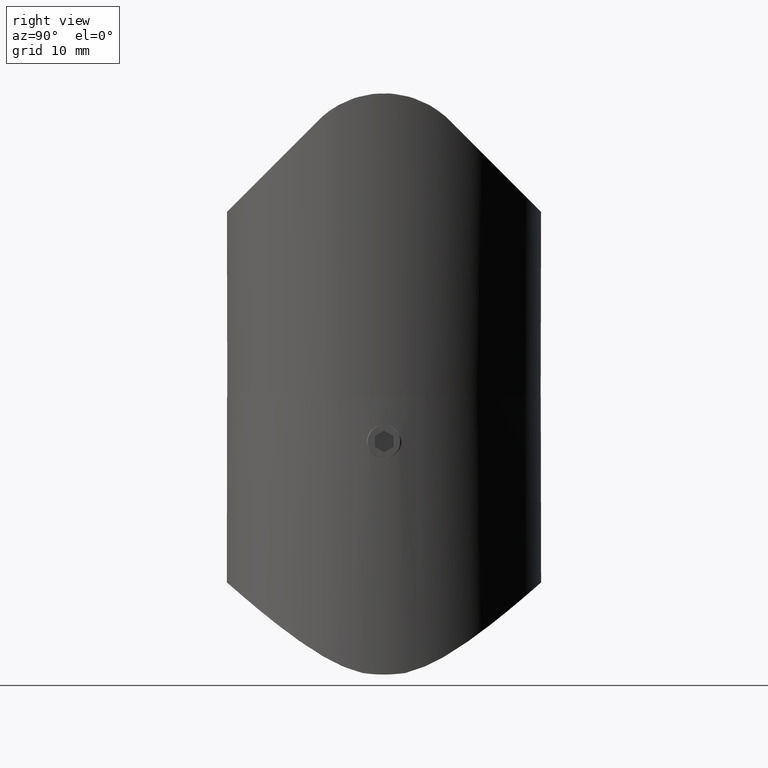
[diagram: clean part render]
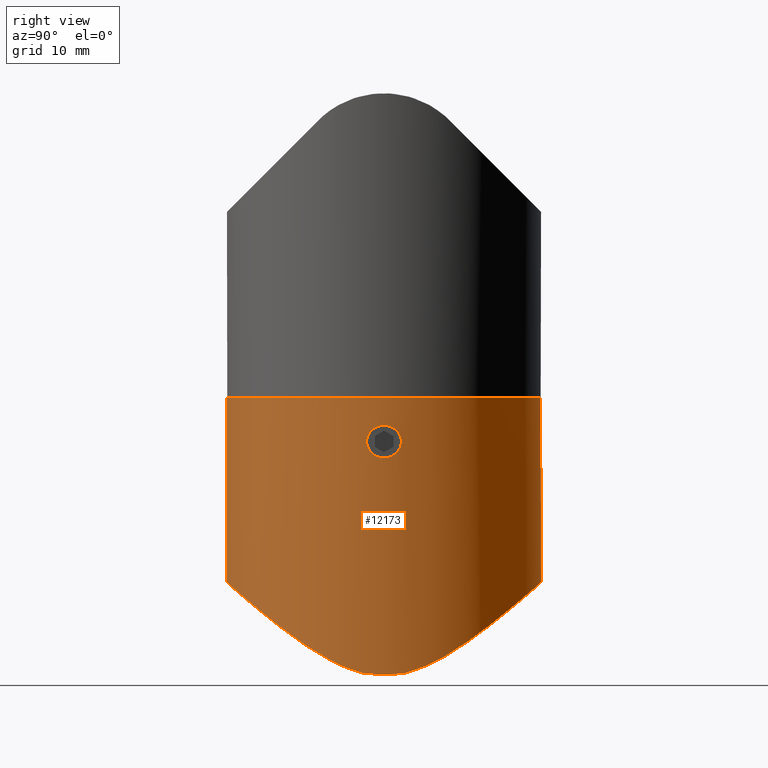
[diagram: same view with one face highlighted and labeled with its STEP entity id]
A machine part, right view. The second image highlights one B-rep face of the part: STEP entity #12173.
In plain terms, the highlighted cylindrical surface (bore or boss wall) has radius 21.2 mm, axis along (0, 0, 1).
Its self-contained STEP definition (entity closure, byte-faithful):
#42 = CARTESIAN_POINT ( 'NONE',  ( -19.23597846385222354, 8.932488683471675017, 34.54295748063633908 ) ) ;
#44 = CARTESIAN_POINT ( 'NONE',  ( 21.17990763815526378, -0.9315037983321998727, 4.112874297098431775 ) ) ;
#194 = CARTESIAN_POINT ( 'NONE',  ( 21.09707939755139350, 2.086613002382393667, 5.726540661255983267 ) ) ;
#206 = EDGE_CURVE ( 'NONE', #9752, #12154, #13322, .T. ) ;
#244 = CARTESIAN_POINT ( 'NONE',  ( 21.16144567167990687, 1.292609180729940244, 4.322456309281889730 ) ) ;
#297 = CARTESIAN_POINT ( 'NONE',  ( 21.09572109661938200, 2.100131289065026774, 5.863268701457142740 ) ) ;
#343 = CARTESIAN_POINT ( 'NONE',  ( 21.17990721333730519, -0.9315160159744285684, 7.887121136182978276 ) ) ;
#349 = CARTESIAN_POINT ( 'NONE',  ( -21.13403217786177279, -1.918809550294324984, 37.36393950467139291 ) ) ;
#403 = CARTESIAN_POINT ( 'NONE',  ( 7.647602592755208484, 19.77533550941512175, 26.24056046325635450 ) ) ;
#423 = CARTESIAN_POINT ( 'NONE',  ( 18.13045765174069501, -11.05191198984288725, 33.17200233731336567 ) ) ;
#464 = CARTESIAN_POINT ( 'NONE',  ( 21.00712700212032402, 2.853176320662127896, 37.23685116701751241 ) ) ;
#470 = CARTESIAN_POINT ( 'NONE',  ( -5.396076094516366162, -20.51278480333633780, 25.60116007777574865 ) ) ;
#573 = CARTESIAN_POINT ( 'NONE',  ( -9.162175566396577153, -19.16368644537788413, 26.76772449057559200 ) ) ;
#616 = CARTESIAN_POINT ( 'NONE',  ( -19.73511412023929168, -7.843637761432188604, 35.21260965036015023 ) ) ;
#1098 = CARTESIAN_POINT ( 'NONE',  ( -18.12391036325159277, 11.06335513298896522, 33.16428687448349422 ) ) ;
#1099 = CARTESIAN_POINT ( 'NONE',  ( 21.16161369789840663, -1.280298884812170801, 4.329772328853101371 ) ) ;
#1141 = VERTEX_POINT ( 'NONE', #5688 ) ;
#1304 = CARTESIAN_POINT ( 'NONE',  ( 21.19338738802113653, -0.5463122828986949342, 8.032335209250529573 ) ) ;
#1352 = CARTESIAN_POINT ( 'NONE',  ( 21.18956307100512149, -0.6772064039055412099, 7.992571142307027365 ) ) ;
#1360 = EDGE_LOOP ( 'NONE', ( #12183 ) ) ;
#1416 = CARTESIAN_POINT ( 'NONE',  ( 21.00712700212032757, -2.853176320662111465, 37.23685116701751951 ) ) ;
#1441 = CARTESIAN_POINT ( 'NONE',  ( 21.14105087698178309, 1.582837063395892807, 4.613142161995630097 ) ) ;
#1547 = CARTESIAN_POINT ( 'NONE',  ( 20.96165513481468423, 3.187972766502427113, 37.15666805968751163 ) ) ;
#1563 = CARTESIAN_POINT ( 'NONE',  ( 21.19963030019371431, 0.9707453046317577883, 37.42962977629206023 ) ) ;
#1569 = CARTESIAN_POINT ( 'NONE',  ( 16.39847894521176030, -13.44926250891399810, 31.41394777627913015 ) ) ;
#1616 = CARTESIAN_POINT ( 'NONE',  ( 6.773617160303725626, -20.13185422919217160, 25.93339866276988914 ) ) ;
#1668 = CARTESIAN_POINT ( 'NONE',  ( 0.7347191679847786538, -21.19844763048626746, 25.00136274186395013 ) ) ;
#1693 = CARTESIAN_POINT ( 'NONE',  ( 20.78756491447705912, 4.174717419718016131, 36.85715627027112617 ) ) ;
#1764 = CARTESIAN_POINT ( 'NONE',  ( -20.91628547743193423, -3.522016669705998027, 37.07666518487717155 ) ) ;
#1808 = CARTESIAN_POINT ( 'NONE',  ( -13.87356393974180868, -16.04150359184534835, 29.37493161141261666 ) ) ;
#2003 = EDGE_CURVE ( 'NONE', #1141, #1141, #5945, .T. ) ;
#2176 = CARTESIAN_POINT ( 'NONE',  ( -3.439803116376629166, 20.92192858588276394, 25.24374555963997580 ) ) ;
#2178 = EDGE_CURVE ( 'NONE', #11021, #11021, #3659, .T. ) ;
#2231 = CARTESIAN_POINT ( 'NONE',  ( 21.13432663958283442, -1.678659205009713107, 4.708850327599564345 ) ) ;
#2345 = CARTESIAN_POINT ( 'NONE',  ( -10.86460074146358323, 18.21520422549882667, 27.57356249888234245 ) ) ;
#2501 = CARTESIAN_POINT ( 'NONE',  ( 21.10616220373411167, -1.993165109395325985, 6.675450194649335423 ) ) ;
#2529 = CARTESIAN_POINT ( 'NONE',  ( 19.71573332048203042, -7.816723346999874700, 35.19728964752894740 ) ) ;
#2547 = CARTESIAN_POINT ( 'NONE',  ( 21.11598095513040008, 1.886308813911637960, 6.933149290118354457 ) ) ;
#2573 = CARTESIAN_POINT ( 'NONE',  ( 20.50098138586953667, -5.437601084095699200, 36.38237944277855718 ) ) ;
#2642 = CARTESIAN_POINT ( 'NONE',  ( 21.20000995909719421, 0.2733994728624853376, 8.100100539464074600 ) ) ;
#2667 = CARTESIAN_POINT ( 'NONE',  ( 21.13403217786176924, 1.918809550294323207, 37.36393950467139291 ) ) ;
#2700 = CARTESIAN_POINT ( 'NONE',  ( 18.41838187507392632, 10.51468112685976308, 33.52365423217118945 ) ) ;
#2712 = CARTESIAN_POINT ( 'NONE',  ( 21.11900221118096965, -1.912205851641371579, 37.34888705888861438 ) ) ;
#2740 = CARTESIAN_POINT ( 'NONE',  ( 20.71935944404669883, 4.500574249301715568, 36.74229322337289716 ) ) ;
#2761 = CARTESIAN_POINT ( 'NONE',  ( -21.00712700212032047, -2.853176320662137222, 37.23685116701751241 ) ) ;
#2792 = CARTESIAN_POINT ( 'NONE',  ( 16.02780701566494770, 13.92706447072073672, 31.05704621812411403 ) ) ;
#2814 = CARTESIAN_POINT ( 'NONE',  ( 10.34671308708050397, -18.51491773498372950, 27.31973694149502307 ) ) ;
#2861 = CARTESIAN_POINT ( 'NONE',  ( -10.30406304709418208, -18.57071127658194598, 27.27495351244458632 ) ) ;
#2949 = CARTESIAN_POINT ( 'NONE',  ( -0.6422222868339445556, -21.20145147702313793, 24.99872582626054651 ) ) ;
#3280 = CARTESIAN_POINT ( 'NONE',  ( -21.00712700212032402, 2.853176320662146548, 37.23685116701751241 ) ) ;
#3545 = CARTESIAN_POINT ( 'NONE',  ( 13.88689877286998886, 16.02995388467169491, 29.38430273930195469 ) ) ;
#3649 = CARTESIAN_POINT ( 'NONE',  ( 21.12172412929903942, 1.821710862658697527, 7.053658385993622382 ) ) ;
#3659 = CIRCLE ( 'NONE', #7383, 21.19999999999999929 ) ;
#3749 = CARTESIAN_POINT ( 'NONE',  ( 21.09574910491176425, -2.099849929224488765, 5.724761762734266846 ) ) ;
#3789 = DIRECTION ( 'NONE',  ( -1.000000000000000000, 0.000000000000000000, 0.000000000000000000 ) ) ;
#3792 = CARTESIAN_POINT ( 'NONE',  ( 21.19437822398569082, 0.5498438256650879374, 8.045118345572543461 ) ) ;
#3798 = CARTESIAN_POINT ( 'NONE',  ( -21.11900221118096965, 1.912205851641397558, 37.34888705888862148 ) ) ;
#3821 = CARTESIAN_POINT ( 'NONE',  ( 20.78775257781547126, -4.173603469984121794, 36.85748119412961898 ) ) ;
#3852 = CARTESIAN_POINT ( 'NONE',  ( 11.92158381141523016, 17.54180937855982592, 28.13896504426887546 ) ) ;
#3870 = CARTESIAN_POINT ( 'NONE',  ( 21.00712700212032757, -2.853176320662111465, 37.23685116701751951 ) ) ;
#3876 = CARTESIAN_POINT ( 'NONE',  ( 19.23420582344855845, -8.936253722288524770, 34.54063338520331428 ) ) ;
#3899 = CARTESIAN_POINT ( 'NONE',  ( -21.07073050063740283, 2.384881823244826116, 37.30054646429981347 ) ) ;
#3953 = CARTESIAN_POINT ( 'NONE',  ( 17.12039434767141088, 12.51740899731145262, 32.10974278505898383 ) ) ;
#3977 = CARTESIAN_POINT ( 'NONE',  ( 10.89474468146732811, -18.19709753500846361, 27.58884435939416591 ) ) ;
#4019 = CARTESIAN_POINT ( 'NONE',  ( 3.811110620333657106, -20.85745351731364750, 25.30016142219273689 ) ) ;
#4062 = CARTESIAN_POINT ( 'NONE',  ( -17.11432993022324212, -12.52577624766683684, 32.10360622135683428 ) ) ;
#4088 = VERTEX_POINT ( 'NONE', #12140 ) ;
#4113 = CARTESIAN_POINT ( 'NONE',  ( -1.332994956151982713, -21.16950665509390106, 25.02678527103411099 ) ) ;
#4456 = CARTESIAN_POINT ( 'NONE',  ( -19.71784070396991595, 7.811464620351530996, 35.20025747201218991 ) ) ;
#4502 = EDGE_LOOP ( 'NONE', ( #4820, #8629, #13469, #13862 ) ) ;
#4509 = CARTESIAN_POINT ( 'NONE',  ( -18.97183492088005252, 9.479871736913381142, 34.20037985494270316 ) ) ;
#4510 = CARTESIAN_POINT ( 'NONE',  ( 21.20000000000000284, -0.1388272120650175800, 3.899999999999993694 ) ) ;
#4558 = CARTESIAN_POINT ( 'NONE',  ( 1.362535519911034720, 21.16752491143684978, 25.02852471459105743 ) ) ;
#4576 = B_SPLINE_CURVE_WITH_KNOTS ( 'NONE', 3,
 ( #464, #2667, #1563, #10719, #7320, #2712, #10764, #3870 ),
 .UNSPECIFIED., .F., .F.,
 ( 4, 2, 2, 4 ),
 ( 0.007900712102515517615, 0.01076325689263845156, 0.01219452928769991853, 0.01362580168276138551 ),
 .UNSPECIFIED. ) ;
#4668 = CARTESIAN_POINT ( 'NONE',  ( 21.15471770136679908, -1.388284475265848084, 4.418416215778702139 ) ) ;
#4819 = CARTESIAN_POINT ( 'NONE',  ( 21.13423477636316505, -1.670308768415172063, 7.280147132885220529 ) ) ;
#4820 = ORIENTED_EDGE ( 'NONE', *, *, #12804, .T. ) ;
#4872 = CARTESIAN_POINT ( 'NONE',  ( 21.17407507464254834, -1.054277556611229683, 7.821318373140353053 ) ) ;
#4974 = CARTESIAN_POINT ( 'NONE',  ( 21.16162508171706591, 1.289713351101869909, 7.679761609492387286 ) ) ;
#4975 = CYLINDRICAL_SURFACE ( 'NONE', #6657, 21.19999999999999929 ) ;
#4981 = CARTESIAN_POINT ( 'NONE',  ( 21.00712700212032402, 2.853176320662127896, 37.23685116701751241 ) ) ;
#5001 = CARTESIAN_POINT ( 'NONE',  ( 20.72086091090560700, -4.493368329470233569, 36.74482401454351788 ) ) ;
#5032 = CARTESIAN_POINT ( 'NONE',  ( 5.422092578124641626, 20.50587517643577584, 25.60717943683935971 ) ) ;
#5055 = CARTESIAN_POINT ( 'NONE',  ( 15.19693727668651917, -14.79376332302379637, 30.37340210289483977 ) ) ;
#5128 = CARTESIAN_POINT ( 'NONE',  ( -21.19963030019371786, -0.9707453046317535694, 37.42962977629206023 ) ) ;
#5129 = CARTESIAN_POINT ( 'NONE',  ( 6.386273738954107770, 20.21801199179768460, 25.85733474396101172 ) ) ;
#5154 = CARTESIAN_POINT ( 'NONE',  ( -13.40629872976561998, -16.43454344511161835, 29.05445220192506639 ) ) ;
#5197 = CARTESIAN_POINT ( 'NONE',  ( -15.21121093450936179, -14.81625854981715307, 30.35989657932969621 ) ) ;
#5248 = CARTESIAN_POINT ( 'NONE',  ( 2.788077751111214031, -21.01869043531653602, 25.15901743832320392 ) ) ;
#5368 = CARTESIAN_POINT ( 'NONE',  ( -21.00712700212032402, 2.853176320662146548, 37.23685116701751241 ) ) ;
#5429 = B_SPLINE_CURVE_WITH_KNOTS ( 'NONE', 3,
 ( #8587, #349, #5128, #9549, #7353, #3798, #3899, #7258 ),
 .UNSPECIFIED., .F., .F.,
 ( 4, 2, 2, 4 ),
 ( 0.007900712102515500268, 0.01076325689263845503, 0.01219452928769993415, 0.01362580168276141153 ),
 .UNSPECIFIED. ) ;
#5615 = CARTESIAN_POINT ( 'NONE',  ( -6.738059069938740819, 20.14389076958427083, 25.92295129678037569 ) ) ;
#5668 = CARTESIAN_POINT ( 'NONE',  ( -3.780921063279433447, 20.86292830591651182, 25.29537290220894974 ) ) ;
#5688 = CARTESIAN_POINT ( 'NONE',  ( 21.19999999999999929, 0.000000000000000000, 3.899999999999994582 ) ) ;
#5721 = CARTESIAN_POINT ( 'NONE',  ( -0.7009264218913946465, 21.19955676658834420, 25.00038909100973683 ) ) ;
#5829 = CARTESIAN_POINT ( 'NONE',  ( -2.756304289599201152, 21.02289532617592727, 25.15533322778153291 ) ) ;
#5938 = CARTESIAN_POINT ( 'NONE',  ( 21.16153344260949964, -1.281584484258582624, 7.669204299185823359 ) ) ;
#5945 = B_SPLINE_CURVE_WITH_KNOTS ( 'NONE', 3,
 ( #6825, #4510, #9183, #12715, #13711, #44, #7979, #1099, #4668, #2231, #10294, #8340, #3749, #12907, #6082, #14104, #2501, #11704, #7150, #4819, #7252, #11858, #5938, #4872, #343, #1352, #1304, #10604, #9386, #2642, #3792, #8389, #4974, #9436, #10553, #3649, #2547, #10698, #13005, #6134, #12857, #297, #194, #14058, #7048, #5985, #14010, #13961, #1441, #244, #11752, #10505, #7203, #8294 ),
 .UNSPECIFIED., .T., .F.,
 ( 4, 2, 2, 2, 2, 2, 2, 2, 2, 2, 2, 2, 2, 2, 2, 2, 2, 2, 2, 2, 2, 2, 2, 2, 2, 2, 4 ),
 ( 0.000000000000000000, 0.0004105508344981324115, 0.0008211016689962648231, 0.001231652503494396964, 0.001642203337992529212, 0.002463305006988793493, 0.003284406675985057124, 0.003694957510483187855, 0.004105508344981318586, 0.004516059179479449751, 0.004926610013977580915, 0.005337160848475711213, 0.005747711682973844112, 0.006158262517471977011, 0.006568813351970108176, 0.007389915020966372240, 0.008211016689962635437, 0.008621567524460766602, 0.009032118358958897766, 0.009442669193457028931, 0.009853220027955160096, 0.01026377086245329126, 0.01067432169695142243, 0.01108487253144955359, 0.01149542336594768302, 0.01231652503494394535, 0.01313762670394020768 ),
 .UNSPECIFIED. ) ;
#5985 = CARTESIAN_POINT ( 'NONE',  ( 21.11583341769087241, 1.887954371105018181, 5.070168364133524008 ) ) ;
#6082 = CARTESIAN_POINT ( 'NONE',  ( 21.09709816131977789, -2.086426204013593466, 6.275112895853672157 ) ) ;
#6092 = CARTESIAN_POINT ( 'NONE',  ( 20.32309887453862984, 6.066109017756510902, 36.09937665069506352 ) ) ;
#6134 = CARTESIAN_POINT ( 'NONE',  ( 21.09712806385816819, 2.086124010063418410, 6.277169851052172511 ) ) ;
#6141 = CARTESIAN_POINT ( 'NONE',  ( 15.22310809826112710, 14.80400270599857926, 30.36957234920756221 ) ) ;
#6207 = CARTESIAN_POINT ( 'NONE',  ( 18.97323679878745395, -9.476858588178714626, 34.20223640908989182 ) ) ;
#6232 = CARTESIAN_POINT ( 'NONE',  ( 7.334752425999731429, 19.89354010316624510, 26.13842956057309408 ) ) ;
#6251 = CARTESIAN_POINT ( 'NONE',  ( -2.719297261495661200, -21.03640439753937486, 25.14350532009003913 ) ) ;
#6347 = CARTESIAN_POINT ( 'NONE',  ( -3.402102689720538642, -20.93633553200553266, 25.23120817832914398 ) ) ;
#6437 = CARTESIAN_POINT ( 'NONE',  ( -11.90780048948769654, -17.55122632899825419, 28.13110359627880896 ) ) ;
#6657 = AXIS2_PLACEMENT_3D ( 'NONE', #9537, #11801, #3789 ) ;
#6819 = CARTESIAN_POINT ( 'NONE',  ( 21.00712700212032402, 2.853176320662127896, 37.23685116701751241 ) ) ;
#6824 = CARTESIAN_POINT ( 'NONE',  ( 0.6738532056318576879, 21.20043459002589259, 24.99961849655812784 ) ) ;
#6825 = CARTESIAN_POINT ( 'NONE',  ( 21.20000000000000995, -2.710505431213761085E-16, 3.899999999999994138 ) ) ;
#6862 = CARTESIAN_POINT ( 'NONE',  ( 0.000000000000000000, 0.000000000000000000, 0.000000000000000000 ) ) ;
#7048 = CARTESIAN_POINT ( 'NONE',  ( 21.10615884063567194, 1.993201350817870754, 5.324643091742984780 ) ) ;
#7150 = CARTESIAN_POINT ( 'NONE',  ( 21.12167644414212120, -1.822250024901788334, 7.052669421245001402 ) ) ;
#7203 = CARTESIAN_POINT ( 'NONE',  ( 21.20000000000002771, 0.2776544241300338278, 3.899999999999995470 ) ) ;
#7252 = CARTESIAN_POINT ( 'NONE',  ( 21.14100263320111139, -1.583558204165291583, 7.386204616789977528 ) ) ;
#7258 = CARTESIAN_POINT ( 'NONE',  ( -21.00712700212032402, 2.853176320662146548, 37.23685116701751241 ) ) ;
#7320 = CARTESIAN_POINT ( 'NONE',  ( 21.18375471972889201, -0.9577690688688728082, 37.41373175145059804 ) ) ;
#7326 = CARTESIAN_POINT ( 'NONE',  ( 19.93680325968655254, -7.235709379913692452, 35.51649783850340469 ) ) ;
#7353 = CARTESIAN_POINT ( 'NONE',  ( -21.18375471972889201, 0.9577690688688924592, 37.41373175145059804 ) ) ;
#7354 = CARTESIAN_POINT ( 'NONE',  ( 6.704504597749570749, 20.11469982589219541, 25.94697034139354841 ) ) ;
#7377 = CARTESIAN_POINT ( 'NONE',  ( -12.42468894060447759, -17.18866395652079504, 28.43317129322997161 ) ) ;
#7383 = AXIS2_PLACEMENT_3D ( 'NONE', #6862, #10334, #12588 ) ;
#7404 = CARTESIAN_POINT ( 'NONE',  ( 19.26095484813178871, 8.937385452166589417, 34.55458941497773395 ) ) ;
#7420 = CARTESIAN_POINT ( 'NONE',  ( -18.11090023929508064, -11.03589552853494560, 33.16726000232421967 ) ) ;
#7447 = CARTESIAN_POINT ( 'NONE',  ( 4.766678230917356984, 20.66841490208581789, 25.46536838872536990 ) ) ;
#7471 = CARTESIAN_POINT ( 'NONE',  ( 2.446709694631026277, -21.06114192269938812, 25.12180968013061388 ) ) ;
#7516 = CARTESIAN_POINT ( 'NONE',  ( -20.57230812902643180, -5.131032304698399216, 36.49997264052047541 ) ) ;
#7560 = CARTESIAN_POINT ( 'NONE',  ( 3.469661371898516311, -20.91698293555415233, 25.24807388963649402 ) ) ;
#7979 = CARTESIAN_POINT ( 'NONE',  ( 21.17418639989980633, -1.052088321307287355, 4.177382137669857443 ) ) ;
#8053 = B_SPLINE_CURVE_WITH_KNOTS ( 'NONE', 3,
 ( #1416, #14086, #8319, #3821, #5001, #2573, #14181, #7326, #2529, #3876, #6207, #423, #8471, #1569, #11932, #5055, #11728, #13083, #12886, #3977, #2814, #14428, #10865, #11002, #10914, #1616, #10957, #4019, #7560, #5248, #7471, #12079, #1668, #2949, #4113, #6251, #6347, #8608, #470, #9722, #9768, #573, #2861, #6437, #7377, #5154, #1808, #5197, #13138, #4062, #13235, #7420, #14386, #12124, #616, #13278, #10818, #12171, #7516, #8653, #1764, #2761 ),
 .UNSPECIFIED., .F., .F.,
 ( 4, 2, 2, 2, 2, 2, 2, 2, 2, 2, 2, 2, 2, 2, 2, 2, 2, 2, 2, 2, 2, 2, 2, 2, 2, 2, 2, 2, 2, 2, 4 ),
 ( 0.07476078482839286499, 0.07578968248729871238, 0.07681858014620454589, 0.07887637546401624067, 0.08093417078182793545, 0.08299196609963963023, 0.08710755673526300591, 0.08916535205307470069, 0.09122314737088639547, 0.09533873800650977115, 0.09739653332432147981, 0.09842543098322732720, 0.09945432864213318847, 0.1035699192777566058, 0.1045988169366624532, 0.1056277145955683144, 0.1076855099133800231, 0.1097433052311917456, 0.1118011005490034682, 0.1138588958668151629, 0.1159166911846268855, 0.1200322818202503167, 0.1220900771380620253, 0.1241478724558737479, 0.1282634630914971652, 0.1303212584093088877, 0.1323790537271206103, 0.1364946443627440276, 0.1375235420216499027, 0.1385524396805557501, 0.1406102349983675004 ),
 .UNSPECIFIED. ) ;
#8294 = CARTESIAN_POINT ( 'NONE',  ( 21.20000000000000995, -2.710505431213761085E-16, 3.899999999999994138 ) ) ;
#8319 = CARTESIAN_POINT ( 'NONE',  ( 20.90794619724893977, -3.522415218863476749, 37.06304580789293368 ) ) ;
#8340 = CARTESIAN_POINT ( 'NONE',  ( 21.10143678659413524, -2.044610665509437819, 5.448299648458998945 ) ) ;
#8389 = CARTESIAN_POINT ( 'NONE',  ( 21.17522279075312142, 1.055431805447856419, 7.836001357316622951 ) ) ;
#8447 = CARTESIAN_POINT ( 'NONE',  ( 19.73789465108027130, 7.835791004179342600, 35.21671304316074469 ) ) ;
#8471 = CARTESIAN_POINT ( 'NONE',  ( 17.48940784883374633, -12.04041976419779303, 32.46576331103037205 ) ) ;
#8587 = CARTESIAN_POINT ( 'NONE',  ( -21.00712700212032047, -2.853176320662137222, 37.23685116701751241 ) ) ;
#8608 = CARTESIAN_POINT ( 'NONE',  ( -4.739745974947039642, -20.67460413921133622, 25.45996595585380362 ) ) ;
#8629 = ORIENTED_EDGE ( 'NONE', *, *, #13554, .T. ) ;
#8653 = CARTESIAN_POINT ( 'NONE',  ( -20.79541592569758635, -4.173738557589052434, 36.86767968655849614 ) ) ;
#9076 = CARTESIAN_POINT ( 'NONE',  ( -5.459644923684983553, 20.53062450731297872, 25.58578250206875282 ) ) ;
#9126 = CARTESIAN_POINT ( 'NONE',  ( -17.48167452434349656, 12.05102649167851503, 32.45797247212890824 ) ) ;
#9181 = CARTESIAN_POINT ( 'NONE',  ( 3.425821476951149247, 20.92421268954094771, 25.24174641364692917 ) ) ;
#9183 = CARTESIAN_POINT ( 'NONE',  ( 21.19863746736675125, -0.2753175862556580533, 3.913630802454696855 ) ) ;
#9231 = CARTESIAN_POINT ( 'NONE',  ( -15.22914346387899442, 14.79897448196191156, 30.37367959076336632 ) ) ;
#9386 = CARTESIAN_POINT ( 'NONE',  ( 21.19999499941276966, -0.1378564806932635056, 8.099949517877861993 ) ) ;
#9436 = CARTESIAN_POINT ( 'NONE',  ( 21.14123479112609161, 1.580387820527488385, 7.389645363001664968 ) ) ;
#9537 = CARTESIAN_POINT ( 'NONE',  ( 0.000000000000000000, 0.000000000000000000, 47.99999999999979394 ) ) ;
#9549 = CARTESIAN_POINT ( 'NONE',  ( -21.20018252438487849, 0.4732111163167221912, 37.43018278304006685 ) ) ;
#9595 = CARTESIAN_POINT ( 'NONE',  ( 18.11606535869906409, 11.02746840334428846, 33.17309545253782233 ) ) ;
#9722 = CARTESIAN_POINT ( 'NONE',  ( -6.684926643207512065, -20.12967295761984587, 25.93411632792565058 ) ) ;
#9752 = VERTEX_POINT ( 'NONE', #5368 ) ;
#9768 = CARTESIAN_POINT ( 'NONE',  ( -7.320856984933171496, -19.90686157654474897, 26.12718832269881020 ) ) ;
#10238 = CARTESIAN_POINT ( 'NONE',  ( -20.32686963344740860, 6.053652321874340991, 36.10523345372588722 ) ) ;
#10294 = CARTESIAN_POINT ( 'NONE',  ( 21.12068906071702656, -1.835091505252879784, 4.943001788670316365 ) ) ;
#10334 = DIRECTION ( 'NONE',  ( 0.000000000000000000, 0.000000000000000000, 1.000000000000000000 ) ) ;
#10348 = CARTESIAN_POINT ( 'NONE',  ( -20.49924794731434829, 5.444501353832460921, 36.37956202324320287 ) ) ;
#10404 = CARTESIAN_POINT ( 'NONE',  ( -10.31495904492767757, 18.53260357518112045, 27.30472957381795140 ) ) ;
#10505 = CARTESIAN_POINT ( 'NONE',  ( 21.19428016865174058, 0.5535039513434864000, 3.955876431340501931 ) ) ;
#10553 = CARTESIAN_POINT ( 'NONE',  ( 21.13432981146033995, 1.669120751102359357, 7.281741931803306755 ) ) ;
#10554 = FACE_OUTER_BOUND ( 'NONE', #4502, .T. ) ;
#10604 = CARTESIAN_POINT ( 'NONE',  ( 21.19861654660651595, -0.2770967324232946893, 8.086159369292214905 ) ) ;
#10698 = CARTESIAN_POINT ( 'NONE',  ( 21.10627907309717344, 1.991932811971865336, 6.679067162863131735 ) ) ;
#10719 = CARTESIAN_POINT ( 'NONE',  ( 21.20018252438487849, -0.4732111163167062595, 37.43018278304006685 ) ) ;
#10764 = CARTESIAN_POINT ( 'NONE',  ( 21.07073050063740993, -2.384881823244797694, 37.30054646429982768 ) ) ;
#10799 = CARTESIAN_POINT ( 'NONE',  ( 17.46632211069666951, 12.03014860227426652, 32.46524962953408533 ) ) ;
#10818 = CARTESIAN_POINT ( 'NONE',  ( -20.31758393461505818, -6.061181971976252747, 36.09455763031164111 ) ) ;
#10865 = CARTESIAN_POINT ( 'NONE',  ( 9.193944427551349108, -19.10546457622275440, 26.81625294661537140 ) ) ;
#10914 = CARTESIAN_POINT ( 'NONE',  ( 8.297915674280389453, -19.51135402070470803, 26.46803649580949269 ) ) ;
#10957 = CARTESIAN_POINT ( 'NONE',  ( 5.494981701214612713, -20.52150282753266453, 25.59373744268203410 ) ) ;
#11002 = CARTESIAN_POINT ( 'NONE',  ( 8.599035988269617903, -19.38050491815548426, 26.58051946424301093 ) ) ;
#11021 = VERTEX_POINT ( 'NONE', #14725 ) ;
#11060 = FACE_BOUND ( 'NONE', #1360, .T. ) ;
#11330 = CARTESIAN_POINT ( 'NONE',  ( -19.93619111571723579, 7.237169289639269643, 35.51563726683364308 ) ) ;
#11383 = CARTESIAN_POINT ( 'NONE',  ( -8.570758456313948059, 19.40145724746611222, 26.56276284366633789 ) ) ;
#11437 = CARTESIAN_POINT ( 'NONE',  ( -2.414227268749573607, 21.06489676682234347, 25.11851826139664468 ) ) ;
#11543 = CARTESIAN_POINT ( 'NONE',  ( -9.169580895146779653, 19.12523363466994297, 26.79976496099160244 ) ) ;
#11630 = FACE_OUTER_BOUND ( 'NONE', #12361, .T. ) ;
#11704 = CARTESIAN_POINT ( 'NONE',  ( 21.11583237373135802, -1.887965383190150837, 6.929799349665485941 ) ) ;
#11728 = CARTESIAN_POINT ( 'NONE',  ( 14.77124380860952790, -15.21887845930735317, 30.03618459972230070 ) ) ;
#11752 = CARTESIAN_POINT ( 'NONE',  ( 21.17506073776195663, 1.058622332822122258, 4.165844460098238500 ) ) ;
#11801 = DIRECTION ( 'NONE',  ( 0.000000000000000000, 0.000000000000000000, -1.000000000000000000 ) ) ;
#11858 = CARTESIAN_POINT ( 'NONE',  ( 21.15476923947922572, -1.387583275835740038, 7.582350301990681274 ) ) ;
#11865 = CARTESIAN_POINT ( 'NONE',  ( 20.49626044570750949, 5.456317908815809581, 36.37471211098660007 ) ) ;
#11913 = CARTESIAN_POINT ( 'NONE',  ( -21.00712700212032047, -2.853176320662137222, 37.23685116701751241 ) ) ;
#11932 = CARTESIAN_POINT ( 'NONE',  ( 16.01187202440502588, -13.90763423890864914, 31.06333404258283082 ) ) ;
#12079 = CARTESIAN_POINT ( 'NONE',  ( 1.420887558291040742, -21.16349281707161722, 25.03206368576842422 ) ) ;
#12124 = CARTESIAN_POINT ( 'NONE',  ( -19.25661272791660750, -8.946743911207136080, 34.54883055296303240 ) ) ;
#12140 = CARTESIAN_POINT ( 'NONE',  ( 21.00712700212032757, -2.853176320662111465, 37.23685116701751951 ) ) ;
#12154 = VERTEX_POINT ( 'NONE', #6819 ) ;
#12171 = CARTESIAN_POINT ( 'NONE',  ( -20.49105945584381772, -5.445973394592721561, 36.36855740593200892 ) ) ;
#12173 = ADVANCED_FACE ( 'NONE', ( #11060, #10554, #11630 ), #4975, .T. ) ;
#12183 = ORIENTED_EDGE ( 'NONE', *, *, #2003, .T. ) ;
#12361 = EDGE_LOOP ( 'NONE', ( #13465 ) ) ;
#12501 = CARTESIAN_POINT ( 'NONE',  ( -13.42585203374231995, 16.45244521429033213, 29.04468936022668757 ) ) ;
#12551 = CARTESIAN_POINT ( 'NONE',  ( -16.03420671538043862, 13.91906601344596162, 31.06307261653499552 ) ) ;
#12588 = DIRECTION ( 'NONE',  ( 1.000000000000000000, 0.000000000000000000, 0.000000000000000000 ) ) ;
#12601 = CARTESIAN_POINT ( 'NONE',  ( 2.397545058263120143, 21.06684435726973348, 25.11681105345133957 ) ) ;
#12713 = CARTESIAN_POINT ( 'NONE',  ( -12.45104149909782620, 17.20419781855310859, 28.42241249851037921 ) ) ;
#12715 = CARTESIAN_POINT ( 'NONE',  ( 21.19344920016492750, -0.5438209688635305961, 3.967023129597436082 ) ) ;
#12804 = EDGE_CURVE ( 'NONE', #4088, #13575, #8053, .T. ) ;
#12857 = CARTESIAN_POINT ( 'NONE',  ( 21.09574742520610613, 2.099866802816769962, 6.140734820635133318 ) ) ;
#12886 = CARTESIAN_POINT ( 'NONE',  ( 12.47278208995789939, -17.18804783645635581, 28.43580718764166093 ) ) ;
#12907 = CARTESIAN_POINT ( 'NONE',  ( 21.09572674325882247, -2.100074565204093524, 6.135898026888237489 ) ) ;
#12968 = CARTESIAN_POINT ( 'NONE',  ( 10.32276833466531230, 18.56010240527081834, 27.28395427053589728 ) ) ;
#13005 = CARTESIAN_POINT ( 'NONE',  ( 21.10236240895028459, 2.032492728035495855, 6.545627915504855565 ) ) ;
#13062 = CARTESIAN_POINT ( 'NONE',  ( 12.43782335648389115, 17.17918493977555627, 28.44104076608774534 ) ) ;
#13083 = CARTESIAN_POINT ( 'NONE',  ( 13.43728507003779704, -16.44186701067604517, 29.05317932647978552 ) ) ;
#13138 = CARTESIAN_POINT ( 'NONE',  ( -16.01796862811177746, -13.93865557711452396, 31.04816306842856832 ) ) ;
#13162 = CARTESIAN_POINT ( 'NONE',  ( 13.41983423763205607, 16.42351649545815562, 29.06347487907841654 ) ) ;
#13195 = EDGE_CURVE ( 'NONE', #12154, #4088, #4576, .T. ) ;
#13235 = CARTESIAN_POINT ( 'NONE',  ( -17.46181780022040542, -12.03663643657735705, 32.46055410078244563 ) ) ;
#13278 = CARTESIAN_POINT ( 'NONE',  ( -20.22508542976153834, -6.362645344179731488, 35.95152047384166138 ) ) ;
#13322 = B_SPLINE_CURVE_WITH_KNOTS ( 'NONE', 3,
 ( #3280, #13871, #13816, #10348, #10238, #11330, #4456, #42, #4509, #1098, #9126, #12551, #9231, #12501, #12713, #2345, #10404, #11543, #11383, #5615, #9076, #5668, #2176, #5829, #11437, #13710, #5721, #6824, #4558, #12601, #13767, #9181, #14211, #7447, #5032, #5129, #7354, #6232, #403, #14309, #12968, #3852, #13062, #13162, #3545, #6141, #2792, #3953, #10799, #9595, #2700, #7404, #8447, #6092, #11865, #2740, #1693, #14256, #1547, #4981 ),
 .UNSPECIFIED., .F., .F.,
 ( 4, 2, 2, 2, 2, 2, 2, 2, 2, 2, 2, 2, 2, 2, 2, 2, 2, 2, 2, 2, 2, 2, 2, 2, 2, 2, 2, 2, 2, 4 ),
 ( 0.002876814490489164149, 0.004944479718715505401, 0.007012144946941847520, 0.009079810175168189640, 0.01114747540339453349, 0.01528280585984721426, 0.01941813631629989850, 0.02355346677275258274, 0.02562113200097892660, 0.02768879722920527045, 0.03182412768565797551, 0.03285796029977115090, 0.03389179291388432630, 0.03595945814211067015, 0.03802712337033702095, 0.03906095598445019634, 0.04009478859856337174, 0.04216245382678972253, 0.04319628644090289793, 0.04423011905501608027, 0.04836544951146879573, 0.05043311473969515346, 0.05250077996792150425, 0.05663611042437421972, 0.05870377565260058439, 0.06077144088082694212, 0.06490677133727969228, 0.06697443656550604307, 0.06800826917961923235, 0.06904210179373240774 ),
 .UNSPECIFIED. ) ;
#13465 = ORIENTED_EDGE ( 'NONE', *, *, #2178, .T. ) ;
#13469 = ORIENTED_EDGE ( 'NONE', *, *, #206, .T. ) ;
#13554 = EDGE_CURVE ( 'NONE', #13575, #9752, #5429, .T. ) ;
#13575 = VERTEX_POINT ( 'NONE', #11913 ) ;
#13710 = CARTESIAN_POINT ( 'NONE',  ( -1.387023609978884187, 21.16576580031034993, 25.03006847154548709 ) ) ;
#13711 = CARTESIAN_POINT ( 'NONE',  ( 21.18956215250311459, -0.6772316238202090721, 4.007438815856106729 ) ) ;
#13767 = CARTESIAN_POINT ( 'NONE',  ( 2.743438436160833049, 21.02456836693874820, 25.15386723056608886 ) ) ;
#13816 = CARTESIAN_POINT ( 'NONE',  ( -20.79406664808735172, 4.179539882840713538, 36.86545504470902301 ) ) ;
#13862 = ORIENTED_EDGE ( 'NONE', *, *, #13195, .T. ) ;
#13871 = CARTESIAN_POINT ( 'NONE',  ( -20.91659288712053666, 3.519753299467171193, 37.07720725771289239 ) ) ;
#13961 = CARTESIAN_POINT ( 'NONE',  ( 21.13414932241367694, 1.671394411053100271, 4.721228228400168980 ) ) ;
#14010 = CARTESIAN_POINT ( 'NONE',  ( 21.12156526289586367, 1.823542624840406301, 4.949519721017926699 ) ) ;
#14058 = CARTESIAN_POINT ( 'NONE',  ( 21.10226850219258665, 2.033464282860488748, 5.458006603372077770 ) ) ;
#14086 = CARTESIAN_POINT ( 'NONE',  ( 20.96141797359584302, -3.189718917207542415, 37.15624985993915885 ) ) ;
#14104 = CARTESIAN_POINT ( 'NONE',  ( 21.10233044440395389, -2.032824377151067896, 6.544505704212476793 ) ) ;
#14181 = CARTESIAN_POINT ( 'NONE',  ( 20.32889199674472636, -6.047128626935875495, 36.10834920005644477 ) ) ;
#14211 = CARTESIAN_POINT ( 'NONE',  ( 3.763541884711373520, 20.86604661795063009, 25.29264523335092463 ) ) ;
#14256 = CARTESIAN_POINT ( 'NONE',  ( 20.90854190279605973, 3.519090238558236994, 37.06406861114324158 ) ) ;
#14309 = CARTESIAN_POINT ( 'NONE',  ( 9.182794294595000295, 19.15389797846811604, 26.77611536156753402 ) ) ;
#14386 = CARTESIAN_POINT ( 'NONE',  ( -18.41323416484399900, -10.52369458327454410, 33.51758165432687520 ) ) ;
#14428 = CARTESIAN_POINT ( 'NONE',  ( 9.487525447089897312, -18.96130331756538112, 26.93947433944209280 ) ) ;
#14725 = CARTESIAN_POINT ( 'NONE',  ( 21.19999999999999929, 0.000000000000000000, 0.000000000000000000 ) ) ;